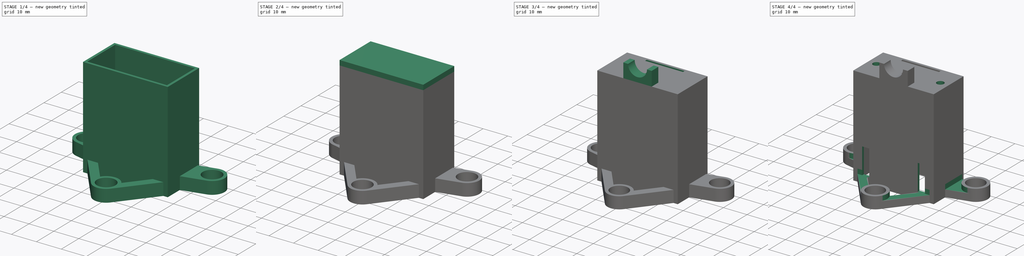
[diagram: build sequence overview — one tinted view per stage of 4, left to right]
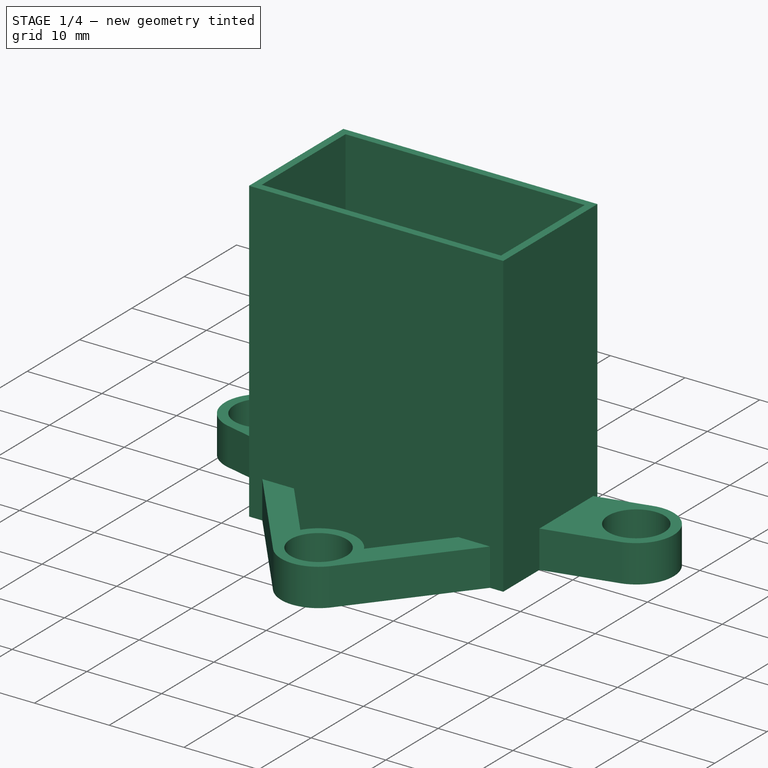
[diagram: stage 1 of 4 — iso view after this stage's code; geometry added in this stage tinted green]
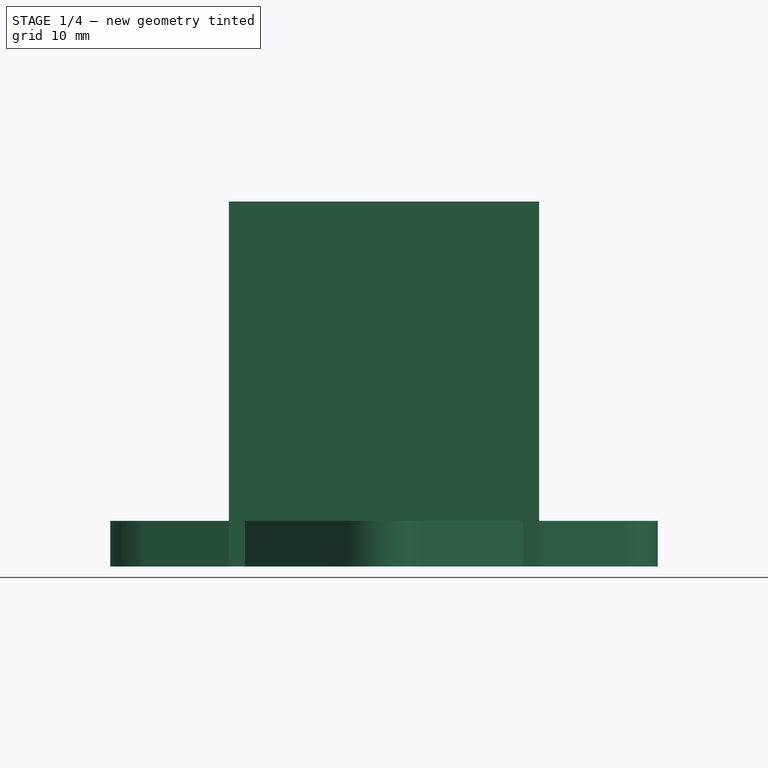
[diagram: stage 1 of 4 — front view after this stage's code; geometry added in this stage tinted green]
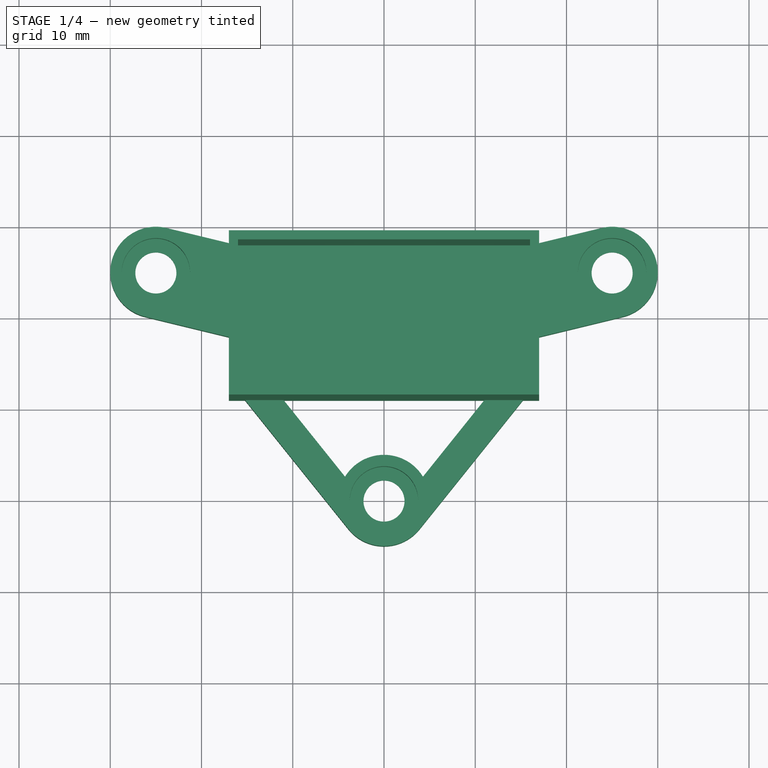
[diagram: stage 1 of 4 — top view after this stage's code; geometry added in this stage tinted green]
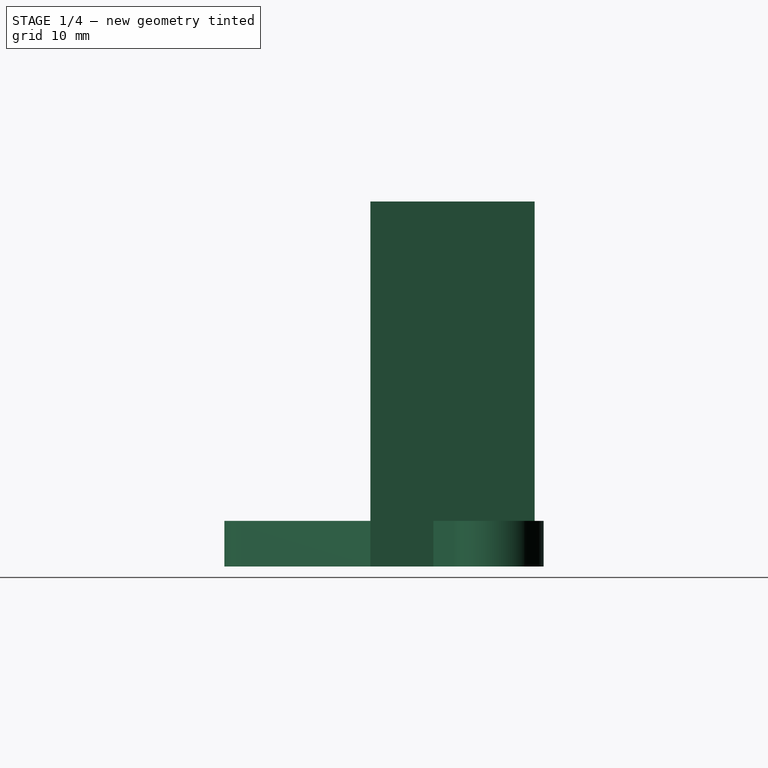
[diagram: stage 1 of 4 — right view after this stage's code; geometry added in this stage tinted green]
FCSTD DOCUMENT  (FreeCAD 1.0R38641 +678 (Git))
Label: box-part2
License: All rights reserved
LicenseURL: https://en.wikipedia.org/wiki/All_rights_reserved
objects: Sketcher::SketchObject×13, PartDesign::Pocket×7, PartDesign::Pad×5, PartDesign::Hole×1, PartDesign::Body×1
note: 66 computed .brp shape members not serialized (recipe doc carries the construction recipe); baked Part::Feature solids carry a one-line shape summary decoded from their .brp

FEATURE [Sketcher::SketchObject] Sketch282
  ArcFitTolerance = 0
  AttachmentSupport = -> [XY_Plane032]
  FullyConstrained = true
  MakeInternals = false
  MapMode = 5
  sketch-geometry (18):
    g0: LineSegment StartX=-16 StartY=7.96043 StartZ=0 EndX=16 EndY=7.96043 EndZ=0
    g1: LineSegment StartX=16 StartY=-2.33 StartZ=0 EndX=16 EndY=-8.03957 EndZ=0
    g2: LineSegment StartX=-16 StartY=-8.03957 StartZ=0 EndX=-16 EndY=-2.33 EndZ=0
    g3: ArcOfCircle CenterX=-25 CenterY=5 CenterZ=0 NormalX=0 NormalY=0 NormalZ=1 AngleXU=0 Radius=5 StartAngle=1.33265 EndAngle=4.47424
    g4: ArcOfCircle CenterX=25 CenterY=5 CenterZ=0 NormalX=0 NormalY=0 NormalZ=1 AngleXU=0 Radius=5 StartAngle=4.95054 EndAngle=8.09213
    g5: ArcOfCircle CenterX=0 CenterY=-20 CenterZ=0 NormalX=0 NormalY=0 NormalZ=1 AngleXU=0 Radius=5 StartAngle=0.547966 EndAngle=2.59363
    g6: LineSegment StartX=-16 StartY=7.96043 StartZ=0 EndX=-23.8205 EndY=9.85888 EndZ=0
    g7: LineSegment StartX=-16 StartY=-2.33 StartZ=0 EndX=-26.1795 EndY=0.141116 EndZ=0
    g8: LineSegment StartX=16 StartY=7.96043 StartZ=0 EndX=23.8205 EndY=9.85888 EndZ=0
    g9: LineSegment StartX=16 StartY=-2.33 StartZ=0 EndX=26.1795 EndY=0.141116 EndZ=0
    g10: LineSegment StartX=-16 StartY=-8.03957 StartZ=0 EndX=-3.90074 EndY=-23.128 EndZ=0
    g11: LineSegment StartX=16 StartY=-8.03957 StartZ=0 EndX=3.90074 EndY=-23.128 EndZ=0
    g12: LineSegment StartX=-11 StartY=-9 StartZ=0 EndX=11 EndY=-9 EndZ=0
    g13: LineSegment StartX=-11 StartY=-9 StartZ=0 EndX=-4.26793 EndY=-17.3952 EndZ=0
    g14: LineSegment StartX=11 StartY=-9 StartZ=0 EndX=4.26793 EndY=-17.3952 EndZ=0
    g15: ArcOfCircle CenterX=0 CenterY=-20 CenterZ=0 NormalX=0 NormalY=0 NormalZ=1 AngleXU=0 Radius=5 StartAngle=3.81749 EndAngle=5.60729
    g16: LineSegment [constr] StartX=-16 StartY=-8.03957 StartZ=0 EndX=16 EndY=-8.03957 EndZ=0
    g17: LineSegment [constr] StartX=-25 StartY=5 StartZ=0 EndX=25 EndY=5 EndZ=0
  constraints (50):
    c: Horizontal(g0)
    c: Vertical(g1)
    c: Vertical(g2)
    c: DistanceY(g1,g0) = 16
    c: DistanceX(g2,g1) = 32
    c: Distance(g-1,g1) = 16
    c: PointOnObject(g5,g-2)
    c: Diameter(g5) = 10
    c: Equal(g3,g4)
    c: Equal(g4,g5)
    c: Distance(g3,g4) = 50
    c: DistanceY(g-1,g3) = 5
    c: DistanceY(g-1,g4) = 5
    c: DistanceX(g-2,g3) = -25
    c: Coincident(g6,g0)
    c: Parallel(g6,g7)
    c: Tangent(g3,g7) = 1.5708
    c: Tangent(g3,g6) = -1.5708
    c: Coincident(g8,g0)
    c: Parallel(g8,g9)
    c: Tangent(g4,g8) = 1.5708
    c: Tangent(g4,g9) = -1.5708
    c: Coincident(g1,g9)
    c: Coincident(g2,g7)
    c: DistanceX(g0,g0) = 32
    c: DistanceX(g-2,g0) = 16
    c: Coincident(g11,g1)
    c: Coincident(g10,g2)
    c: DistanceY(g-1,g2) = -2.33
    c: Horizontal(g12)
    c: Coincident(g13,g12)
    c: Distance(g-1,g12) = 9
    c: Parallel(g13,g10)
    c: DistanceX(g-2,g12) = -11
    c: DistanceX(g12,g12) = 22
    c: Coincident(g14,g12)
    c: Parallel(g14,g11)
    c: Coincident(g15,g11) = 1.5708
    c: Coincident(g5,g14)
    c: Equal(g5,g15)
    c: Coincident(g5,g13)
    c: Tangent(g15,g10) = -1.5708
    c: Coincident(g5,g15)
    c: Tangent(g11,g15) = 1.5708
    c: Coincident(g16,g2)
    c: Horizontal(g16)
    c: Coincident(g16,g1)
    c: Coincident(g17,g3)
    c: Coincident(g17,g4)
    c: Distance(g5,g17) = 25
FEATURE [PartDesign::Pad] Pad134
  Direction = (0,0,1)
  Length = 5
  Length2 = 10
  Profile = -> Sketch282
  ReferenceAxis = -> Sketch282 [N_Axis]
  Suppressed = false
  Type = 0
FEATURE [Sketcher::SketchObject] Sketch284
  ArcFitTolerance = 0
  FullyConstrained = true
  MakeInternals = false
  MapMode = 5
  Placement = pos=(0,0,0) rot=(1,0,0;3.14159rad)
  sketch-geometry (8):
    g0: LineSegment StartX=-17 StartY=9 StartZ=0 EndX=17 EndY=9 EndZ=0
    g1: LineSegment StartX=17 StartY=9 StartZ=0 EndX=17 EndY=-9 EndZ=0
    g2: LineSegment StartX=17 StartY=-9 StartZ=0 EndX=-17 EndY=-9 EndZ=0
    g3: LineSegment StartX=-17 StartY=-9 StartZ=0 EndX=-17 EndY=9 EndZ=0
    g4: LineSegment StartX=-16 StartY=8 StartZ=0 EndX=16 EndY=8 EndZ=0
    g5: LineSegment StartX=16 StartY=8 StartZ=0 EndX=16 EndY=-8 EndZ=0
    g6: LineSegment StartX=16 StartY=-8 StartZ=0 EndX=-16 EndY=-8 EndZ=0
    g7: LineSegment StartX=-16 StartY=-8 StartZ=0 EndX=-16 EndY=8 EndZ=0
  constraints (24):
    c: Coincident(g0,g1)
    c: Coincident(g1,g2)
    c: Coincident(g2,g3)
    c: Coincident(g3,g0)
    c: Horizontal(g0)
    c: Horizontal(g2)
    c: Vertical(g1)
    c: Vertical(g3)
    c: DistanceX(g2,g2) = 34
    c: DistanceY(g3,g3) = 18
    c: Distance(g-1,g0) = 9
    c: Distance(g-1,g3) = 17
    c: Coincident(g4,g5)
    c: Coincident(g5,g6)
    c: Coincident(g6,g7)
    c: Coincident(g7,g4)
    c: Horizontal(g4)
    c: Horizontal(g6)
    c: Vertical(g5)
    c: Vertical(g7)
    c: Distance(g0,g4) = 1
    c: Distance(g1,g5) = 1
    c: DistanceX(g6,g6) = 32
    c: DistanceY(g5,g5) = 16
FEATURE [Sketcher::SketchObject] Sketch286
  ArcFitTolerance = 0
  FullyConstrained = true
  MakeInternals = false
  MapMode = 5
  Placement = pos=(0,0,5) rot=(0,0,1;0rad)
  sketch-geometry (3):
    g0: Circle CenterX=0 CenterY=-20 CenterZ=0 NormalX=0 NormalY=0 NormalZ=1 AngleXU=0 Radius=2.25
    g1: Circle CenterX=25 CenterY=5 CenterZ=0 NormalX=0 NormalY=0 NormalZ=1 AngleXU=0 Radius=2.25
    g2: Circle CenterX=-25 CenterY=5 CenterZ=0 NormalX=0 NormalY=0 NormalZ=1 AngleXU=0 Radius=2.25
  constraints (9):
    c: Distance(g2,g-2) = 25
    c: Distance(g1,g-2) = 25
    c: Distance(g2,g-1) = 5
    c: Distance(g1,g-1) = 5
    c: Distance(g0,g-1) = 20
    c: PointOnObject(g0,g-2)
    c: Diameter(g2) = 4.5
    c: Equal(g2,g1)
    c: Equal(g2,g0)
FEATURE [PartDesign::Hole] Hole012
  BaseFeature = -> Pad134
  CustomThreadClearance = 0
  Depth = 25
  DepthType = 0
  Diameter = 4.5
  DrillForDepth = false
  DrillPoint = 1
  DrillPointAngle = 118
  HoleCutCountersinkAngle = 90
  HoleCutCustomValues = false
  HoleCutDepth = 4
  HoleCutDiameter = 7.5
  HoleCutType = 1
  ModelThread = false
  Profile = -> Sketch286
  Suppressed = false
  Tapered = false
  TaperedAngle = 90
  ThreadClass = 0
  ThreadDepth = 25
  ThreadDepthType = 0
  ThreadDirection = 0
  ThreadFit = 0
  ThreadSize = 0
  ThreadType = 0
  Threaded = false
  UseCustomThreadClearance = false
FEATURE [PartDesign::Pad] Pad136
  BaseFeature = -> Hole012
  Direction = (0,-1e-16,-1)
  Length = 40
  Length2 = 10
  Profile = -> Sketch284
  ReferenceAxis = -> Sketch284 [N_Axis]
  Reversed = true
  Suppressed = false
  Type = 0
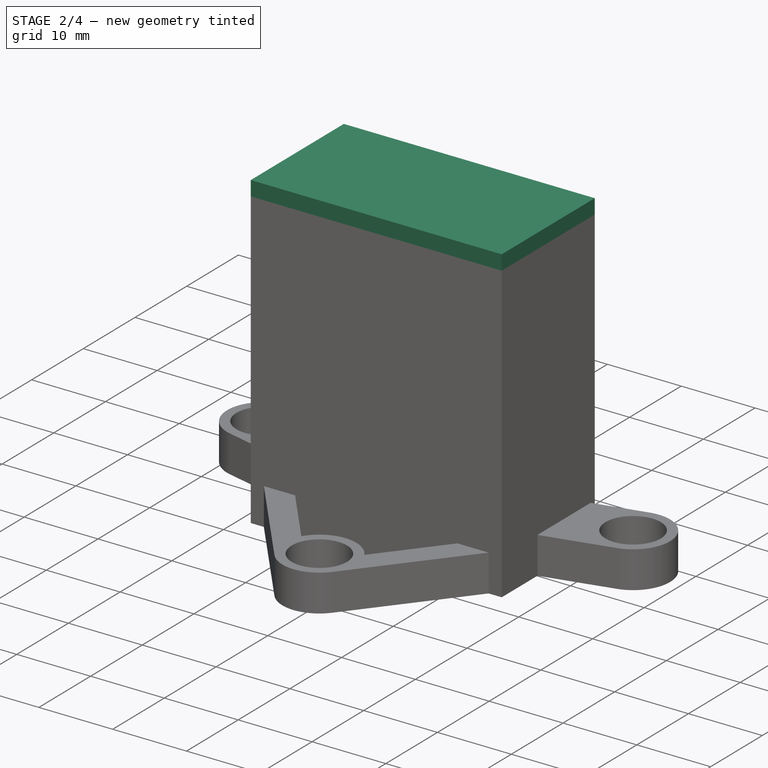
[diagram: stage 2 of 4 — iso view after this stage's code; geometry added in this stage tinted green]
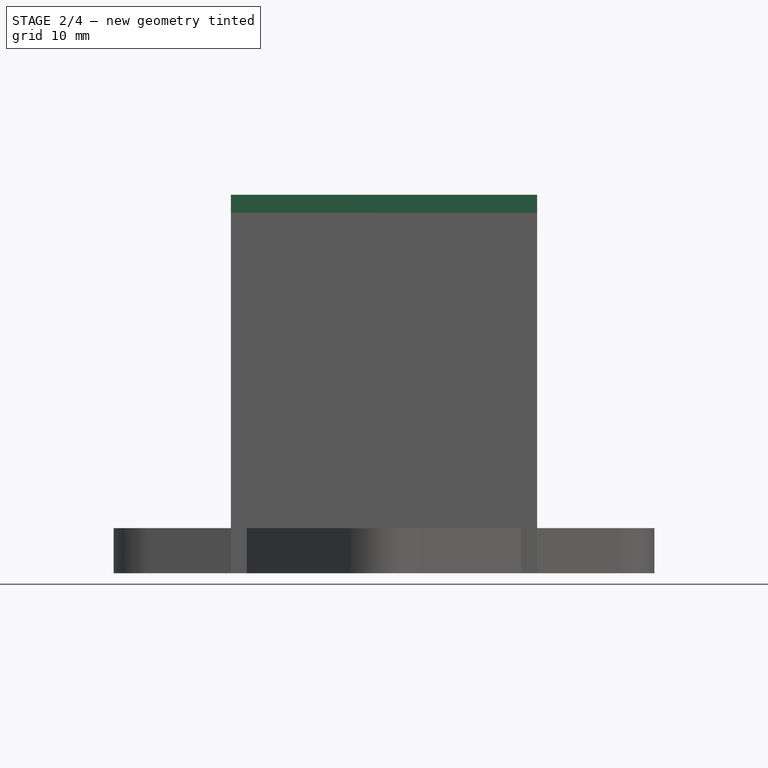
[diagram: stage 2 of 4 — front view after this stage's code; geometry added in this stage tinted green]
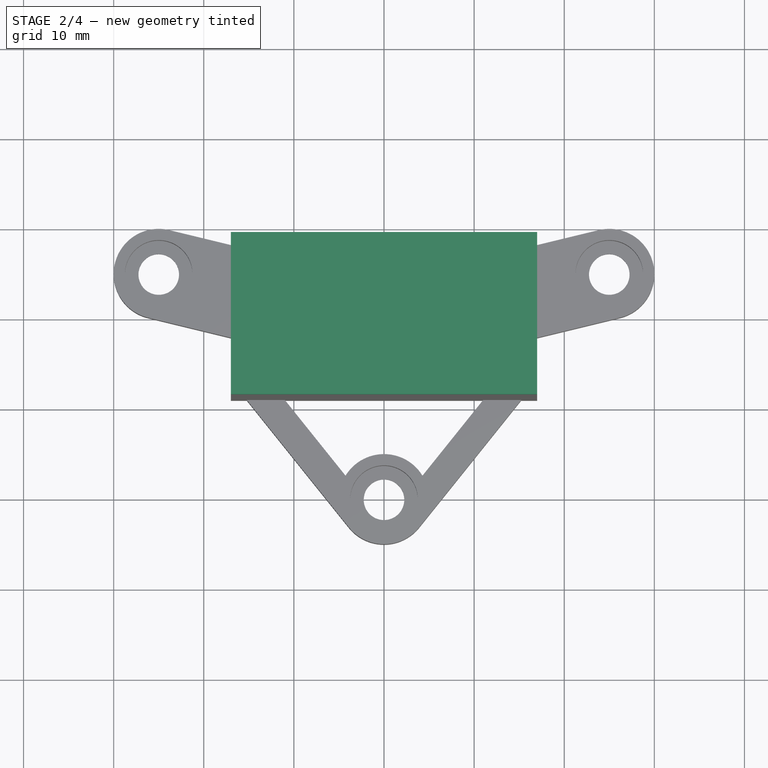
[diagram: stage 2 of 4 — top view after this stage's code; geometry added in this stage tinted green]
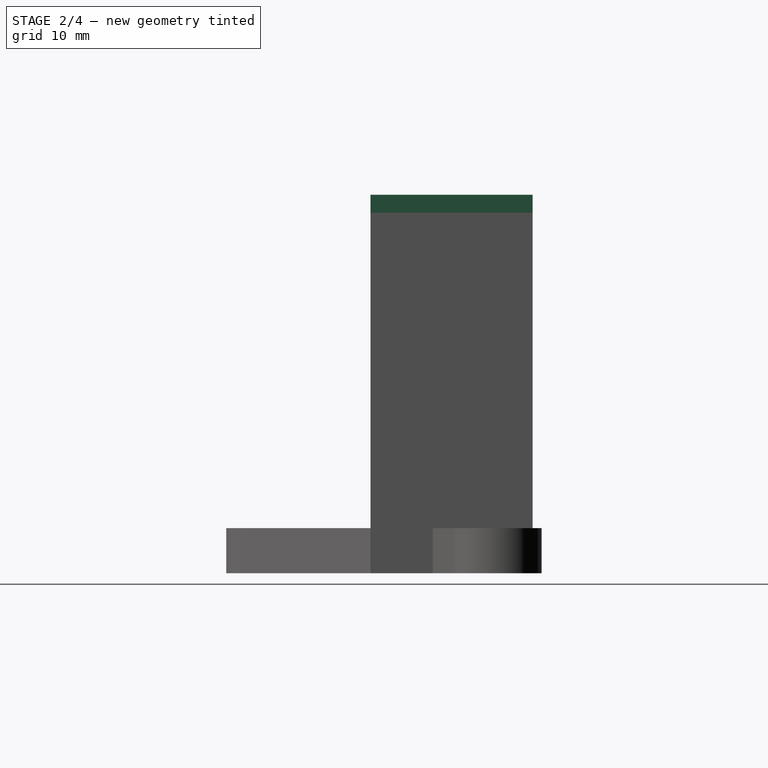
[diagram: stage 2 of 4 — right view after this stage's code; geometry added in this stage tinted green]
FEATURE [Sketcher::SketchObject] Sketch287
  ArcFitTolerance = 0
  FullyConstrained = true
  MakeInternals = false
  MapMode = 5
  Placement = pos=(0,-8,0) rot=(1,0,0;1.5708rad)
  sketch-geometry (8):
    g0: LineSegment StartX=-13.25 StartY=3 StartZ=0 EndX=-10.25 EndY=3 EndZ=0
    g1: LineSegment StartX=-13.25 StartY=3 StartZ=0 EndX=-13.25 EndY=14 EndZ=0
    g2: LineSegment StartX=-10.25 StartY=3 StartZ=0 EndX=-10.25 EndY=14 EndZ=0
    g3: LineSegment StartX=-13.25 StartY=14 StartZ=0 EndX=-10.25 EndY=14 EndZ=0
    g4: LineSegment StartX=10.25 StartY=3 StartZ=0 EndX=13.25 EndY=3 EndZ=0
    g5: LineSegment StartX=10.25 StartY=3 StartZ=0 EndX=10.25 EndY=14 EndZ=0
    g6: LineSegment StartX=13.25 StartY=3 StartZ=0 EndX=13.25 EndY=14 EndZ=0
    g7: LineSegment StartX=10.25 StartY=14 StartZ=0 EndX=13.25 EndY=14 EndZ=0
  constraints (24):
    c: Horizontal(g0)
    c: DistanceX(g0,g0) = 3
    c: DistanceX(g-2,g0) = -10.25
    c: Distance(g-1,g0) = 3
    c: Coincident(g1,g0)
    c: Vertical(g1)
    c: Coincident(g2,g0)
    c: Vertical(g2)
    c: Coincident(g3,g1)
    c: Coincident(g3,g2)
    c: Horizontal(g3)
    c: DistanceY(g1,g1) = 11
    c: Horizontal(g4)
    c: DistanceX(g4,g4) = 3
    c: Coincident(g5,g4)
    c: Vertical(g5)
    c: Coincident(g6,g4)
    c: Vertical(g6)
    c: Coincident(g7,g5)
    c: Coincident(g7,g6)
    c: Horizontal(g7)
    c: Distance(g-1,g4) = 3
    c: DistanceY(g6,g6) = 11
    c: DistanceX(g-2,g4) = 10.25
FEATURE [Sketcher::SketchObject] Sketch288
  ArcFitTolerance = 0
  FullyConstrained = true
  MakeInternals = false
  MapMode = 5
  Placement = pos=(0,0,0) rot=(1,0,0;3.14159rad)
  sketch-geometry (4):
    g0: LineSegment StartX=-16 StartY=8 StartZ=0 EndX=16 EndY=8 EndZ=0
    g1: LineSegment StartX=16 StartY=8 StartZ=0 EndX=16 EndY=-8 EndZ=0
    g2: LineSegment StartX=16 StartY=-8 StartZ=0 EndX=-16 EndY=-8 EndZ=0
    g3: LineSegment StartX=-16 StartY=-8 StartZ=0 EndX=-16 EndY=8 EndZ=0
  constraints (12):
    c: Coincident(g0,g1)
    c: Coincident(g1,g2)
    c: Coincident(g2,g3)
    c: Coincident(g3,g0)
    c: Horizontal(g0)
    c: Horizontal(g2)
    c: Vertical(g1)
    c: Vertical(g3)
    c: DistanceX(g2,g2) = 32
    c: DistanceY(g1,g1) = 16
    c: Distance(g-1,g3) = 16
    c: Distance(g-1,g0) = 8
FEATURE [PartDesign::Pocket] Pocket119
  BaseFeature = -> Pad136
  Direction = (0,1e-16,1)
  Length = 5
  Length2 = 5
  Profile = -> Sketch288
  ReferenceAxis = -> Sketch288 [N_Axis]
  Suppressed = false
  Type = 0
FEATURE [Sketcher::SketchObject] Sketch289
  ArcFitTolerance = 0
  AttachmentSupport = -> [Pocket119]
  FullyConstrained = true
  MakeInternals = false
  MapMode = 5
  Placement = pos=(0,0,40) rot=(0,0,1;0rad)
  sketch-geometry (4):
    g0: LineSegment StartX=-17 StartY=9 StartZ=0 EndX=17 EndY=9 EndZ=0
    g1: LineSegment StartX=17 StartY=9 StartZ=0 EndX=17 EndY=-9 EndZ=0
    g2: LineSegment StartX=17 StartY=-9 StartZ=0 EndX=-17 EndY=-9 EndZ=0
    g3: LineSegment StartX=-17 StartY=-9 StartZ=0 EndX=-17 EndY=9 EndZ=0
  constraints (12):
    c: Coincident(g0,g1)
    c: Coincident(g1,g2)
    c: Coincident(g2,g3)
    c: Coincident(g3,g0)
    c: Horizontal(g0)
    c: Horizontal(g2)
    c: Vertical(g1)
    c: Vertical(g3)
    c: DistanceX(g2,g2) = 34
    c: DistanceY(g1,g1) = 18
    c: Distance(g-1,g3) = 17
    c: Distance(g-1,g0) = 9
FEATURE [PartDesign::Pad] Pad137
  BaseFeature = -> Pocket119
  Direction = (0,0,1)
  Length = 2
  Length2 = 10
  Profile = -> Sketch289
  ReferenceAxis = -> Sketch289 [N_Axis]
  Suppressed = false
  Type = 0
FEATURE [Sketcher::SketchObject] Sketch290
  ArcFitTolerance = 0
  AttachmentSupport = -> [Pad137]
  FullyConstrained = true
  MakeInternals = false
  MapMode = 5
  Placement = pos=(0,0,40) rot=(1,0,0;3.14159rad)
  sketch-geometry (4):
    g0: LineSegment StartX=-15 StartY=-2 StartZ=0 EndX=15 EndY=-2 EndZ=0
    g1: LineSegment StartX=15 StartY=-2 StartZ=0 EndX=15 EndY=-5 EndZ=0
    g2: LineSegment StartX=15 StartY=-5 StartZ=0 EndX=-15 EndY=-5 EndZ=0
    g3: LineSegment StartX=-15 StartY=-5 StartZ=0 EndX=-15 EndY=-2 EndZ=0
  constraints (12):
    c: Coincident(g0,g1)
    c: Coincident(g1,g2)
    c: Coincident(g2,g3)
    c: Coincident(g3,g0)
    c: Horizontal(g0)
    c: Horizontal(g2)
    c: Vertical(g1)
    c: Vertical(g3)
    c: DistanceY(g3,g3) = 3
    c: DistanceX(g2,g2) = 30
    c: Distance(g-1,g3) = 15
    c: Distance(g-1,g0) = 2
FEATURE [PartDesign::Pocket] Pocket120
  BaseFeature = -> Pad137
  Direction = (0,0,1)
  Length = 1
  Length2 = 5
  Profile = -> Sketch290
  ReferenceAxis = -> Sketch290 [N_Axis]
  Suppressed = false
  Type = 0
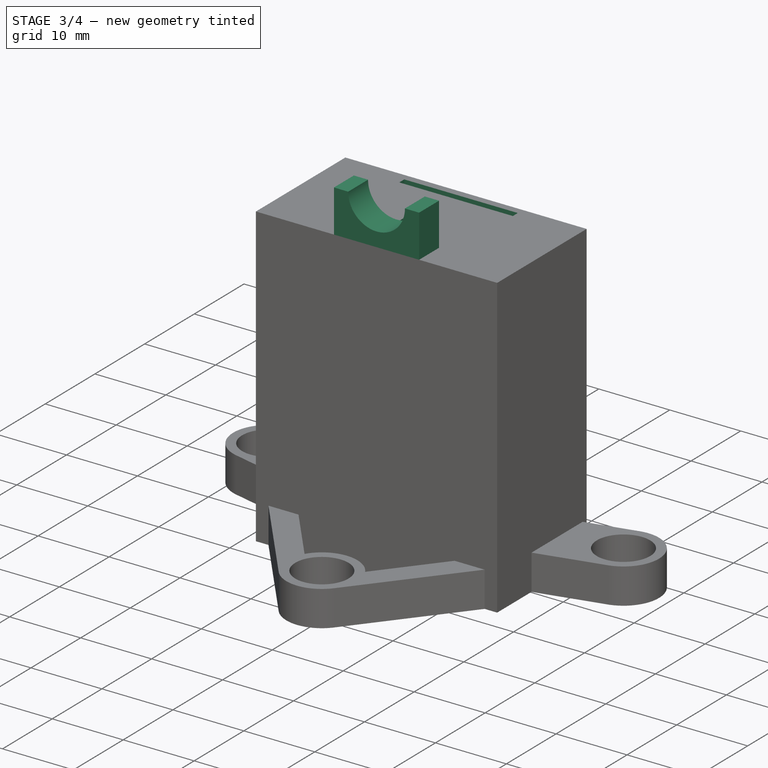
[diagram: stage 3 of 4 — iso view after this stage's code; geometry added in this stage tinted green]
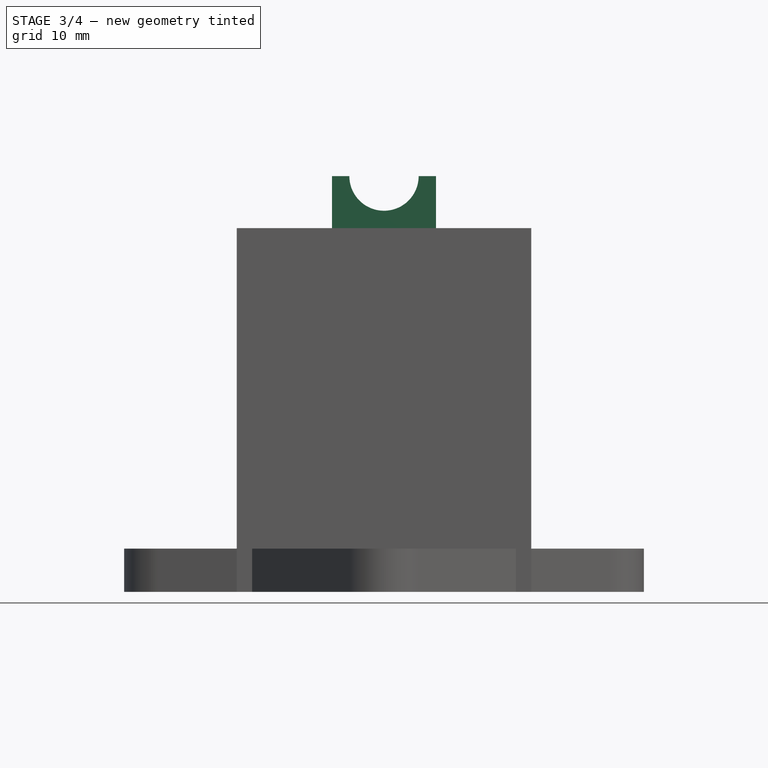
[diagram: stage 3 of 4 — front view after this stage's code; geometry added in this stage tinted green]
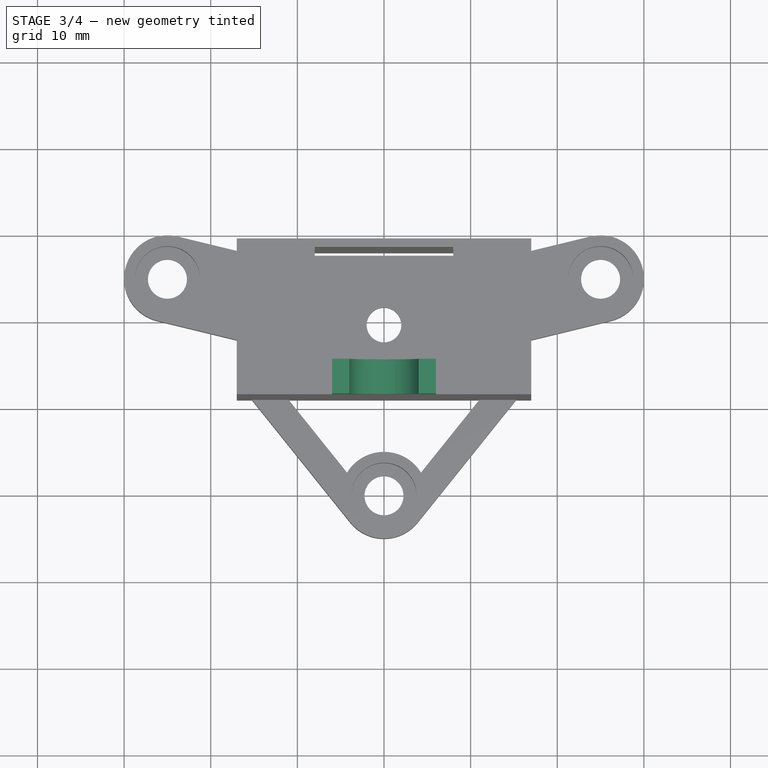
[diagram: stage 3 of 4 — top view after this stage's code; geometry added in this stage tinted green]
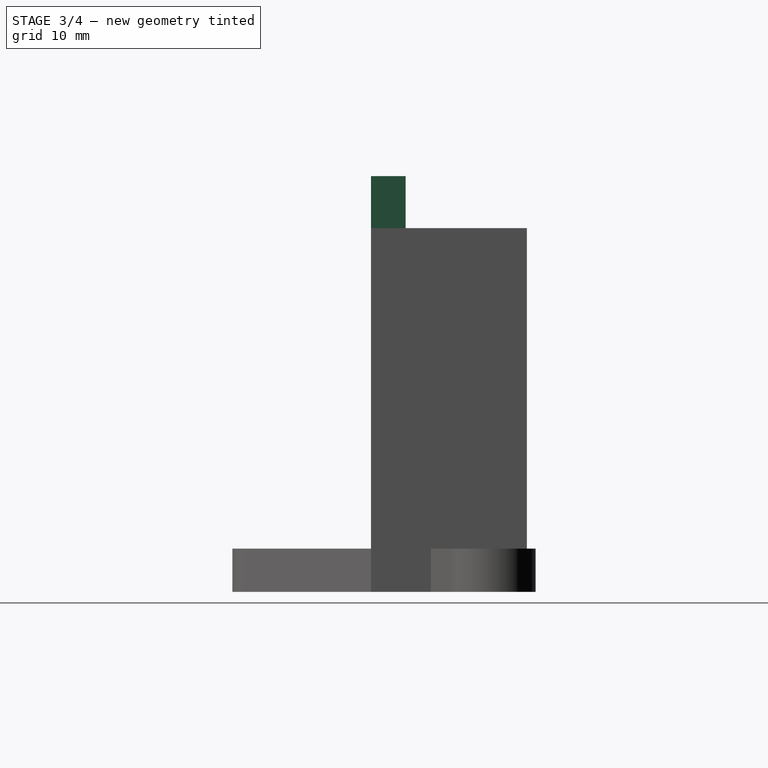
[diagram: stage 3 of 4 — right view after this stage's code; geometry added in this stage tinted green]
FEATURE [Sketcher::SketchObject] Sketch291
  ArcFitTolerance = 0
  AttachmentSupport = -> [Pocket120]
  FullyConstrained = true
  MakeInternals = false
  MapMode = 5
  Placement = pos=(0,0,42) rot=(0,0,1;0rad)
  sketch-geometry (5):
    g0: LineSegment StartX=-8 StartY=8 StartZ=0 EndX=8 EndY=8 EndZ=0
    g1: LineSegment StartX=8 StartY=8 StartZ=0 EndX=8 EndY=7 EndZ=0
    g2: LineSegment StartX=8 StartY=7 StartZ=0 EndX=-8 EndY=7 EndZ=0
    g3: LineSegment StartX=-8 StartY=7 StartZ=0 EndX=-8 EndY=8 EndZ=0
    g4: Circle CenterX=0 CenterY=-1 CenterZ=0 NormalX=0 NormalY=0 NormalZ=1 AngleXU=0 Radius=2
  constraints (15):
    c: Coincident(g0,g1)
    c: Coincident(g1,g2)
    c: Coincident(g2,g3)
    c: Coincident(g3,g0)
    c: Horizontal(g0)
    c: Horizontal(g2)
    c: Vertical(g1)
    c: Vertical(g3)
    c: Distance(g-1,g1) = 8
    c: Distance(g-1,g2) = 7
    c: DistanceX(g0,g0) = 16
    c: DistanceY(g1,g1) = 1
    c: Diameter(g4) = 4
    c: DistanceY(g-1,g4) = -1
    c: PointOnObject(g4,g-2)
FEATURE [PartDesign::Pocket] Pocket121
  BaseFeature = -> Pocket120
  Direction = (0,0,-1)
  Length = 5
  Length2 = 5
  Profile = -> Sketch291
  ReferenceAxis = -> Sketch291 [N_Axis]
  Suppressed = false
  Type = 0
FEATURE [Sketcher::SketchObject] Sketch292
  ArcFitTolerance = 0
  AttachmentSupport = -> [Pocket121]
  FullyConstrained = true
  MakeInternals = false
  MapMode = 5
  Placement = pos=(0,0,42) rot=(0,0,1;0rad)
  sketch-geometry (4):
    g0: LineSegment StartX=-6 StartY=-5 StartZ=0 EndX=6 EndY=-5 EndZ=0
    g1: LineSegment StartX=6 StartY=-5 StartZ=0 EndX=6 EndY=-9 EndZ=0
    g2: LineSegment StartX=6 StartY=-9 StartZ=0 EndX=-6 EndY=-9 EndZ=0
    g3: LineSegment StartX=-6 StartY=-9 StartZ=0 EndX=-6 EndY=-5 EndZ=0
  constraints (12):
    c: Coincident(g0,g1)
    c: Coincident(g1,g2)
    c: Coincident(g2,g3)
    c: Coincident(g3,g0)
    c: Horizontal(g0)
    c: Horizontal(g2)
    c: Vertical(g1)
    c: Vertical(g3)
    c: DistanceX(g2,g2) = 12
    c: Distance(g-1,g3) = 6
    c: DistanceY(g1,g1) = 4
    c: Distance(g-1,g0) = 5
FEATURE [PartDesign::Pad] Pad138
  BaseFeature = -> Pocket121
  Direction = (0,0,1)
  Length = 6
  Length2 = 10
  Profile = -> Sketch292
  ReferenceAxis = -> Sketch292 [N_Axis]
  Suppressed = false
  Type = 0
FEATURE [Sketcher::SketchObject] Sketch293
  ArcFitTolerance = 0
  AttachmentSupport = -> [Pad138]
  FullyConstrained = true
  MakeInternals = false
  MapMode = 5
  Placement = pos=(0,-9,0) rot=(1,0,0;1.5708rad)
  sketch-geometry (1):
    g0: Circle CenterX=0 CenterY=48 CenterZ=0 NormalX=0 NormalY=0 NormalZ=1 AngleXU=0 Radius=4
  constraints (3):
    c: PointOnObject(g0,g-2)
    c: Diameter(g0) = 8
    c: DistanceY(g-1,g0) = 48
FEATURE [PartDesign::Pocket] Pocket122
  BaseFeature = -> Pad138
  Direction = (0,1,-2e-16)
  Length = 5
  Length2 = 5
  Profile = -> Sketch293
  ReferenceAxis = -> Sketch293 [N_Axis]
  Suppressed = false
  Type = 0
FEATURE [Sketcher::SketchObject] Sketch294
  ArcFitTolerance = 0
  AttachmentSupport = -> [Pocket122]
  FullyConstrained = true
  MakeInternals = false
  MapMode = 5
  Placement = pos=(0,0,42) rot=(0,0,1;0rad)
  sketch-geometry (2):
    g0: Circle CenterX=-13.5 CenterY=0 CenterZ=0 NormalX=0 NormalY=0 NormalZ=1 AngleXU=0 Radius=2
    g1: Circle CenterX=13.5 CenterY=0 CenterZ=0 NormalX=0 NormalY=0 NormalZ=1 AngleXU=0 Radius=2
  constraints (6):
    c: PointOnObject(g0,g-1)
    c: PointOnObject(g1,g-1)
    c: Diameter(g0) = 4
    c: Equal(g0,g1)
    c: DistanceX(g-2,g0) = -13.5
    c: DistanceX(g-2,g1) = 13.5
FEATURE [PartDesign::Pad] Pad139
  BaseFeature = -> Pocket122
  Direction = (0,0,1)
  Length = 3
  Length2 = 10
  Profile = -> Sketch294
  ReferenceAxis = -> Sketch294 [N_Axis]
  Reversed = true
  Suppressed = false
  Type = 0
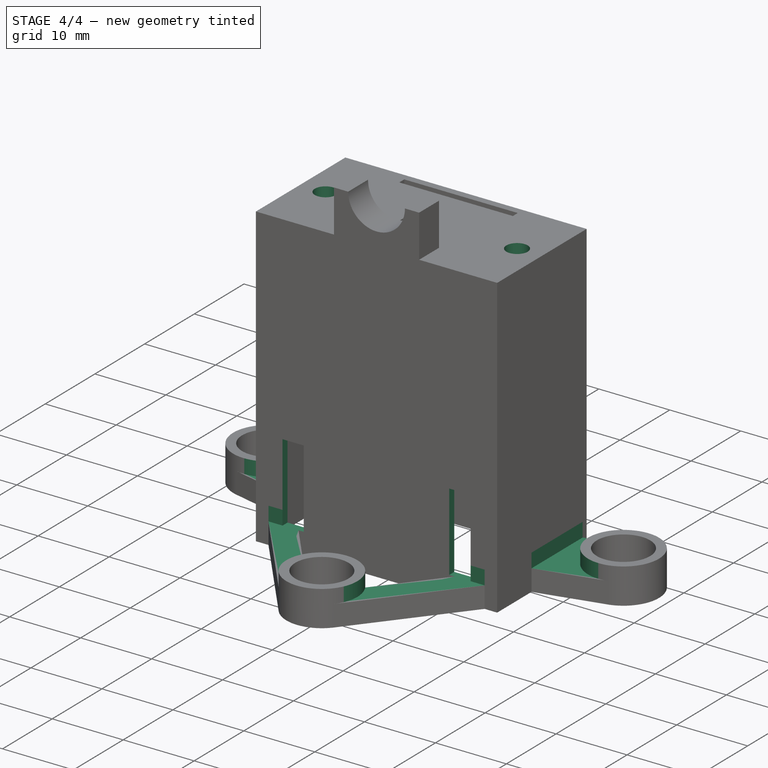
[diagram: stage 4 of 4 — iso view after this stage's code; geometry added in this stage tinted green]
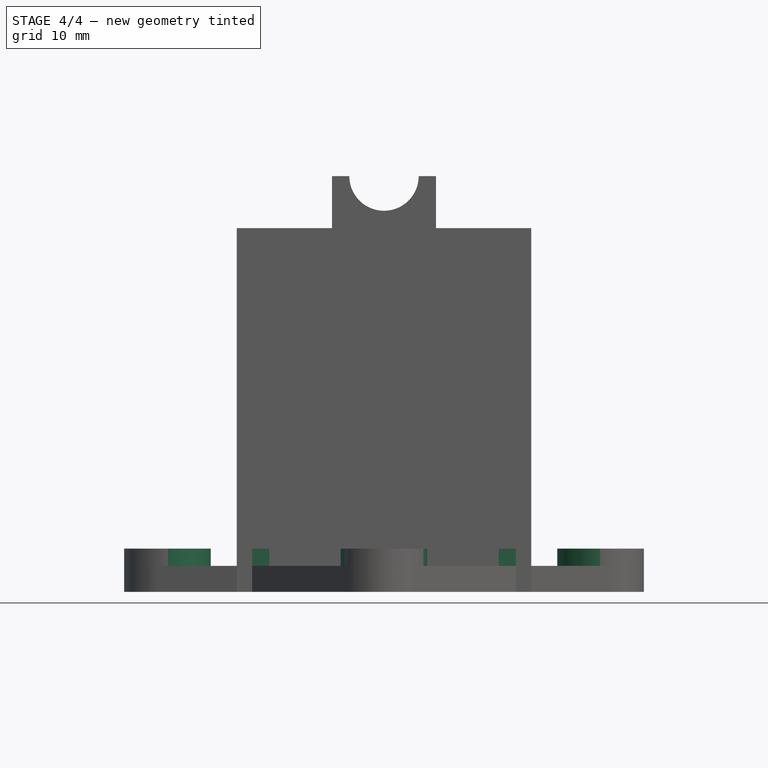
[diagram: stage 4 of 4 — front view after this stage's code; geometry added in this stage tinted green]
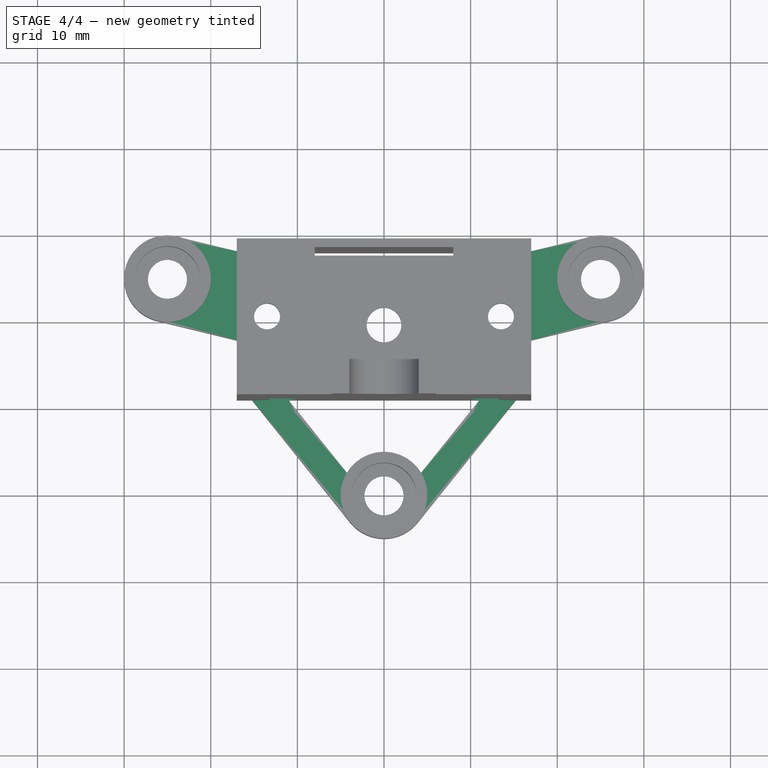
[diagram: stage 4 of 4 — top view after this stage's code; geometry added in this stage tinted green]
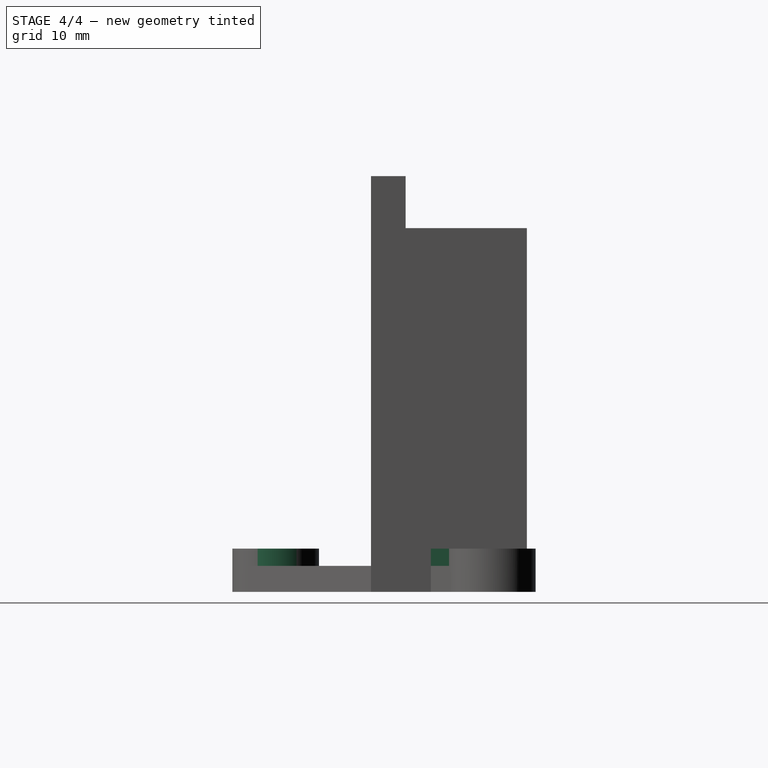
[diagram: stage 4 of 4 — right view after this stage's code; geometry added in this stage tinted green]
FEATURE [PartDesign::Pocket] Pocket123
  BaseFeature = -> Pad139
  Direction = (0,1,-2e-16)
  Length = 5
  Length2 = 5
  Midplane = true
  Profile = -> Sketch287
  ReferenceAxis = -> Sketch287 [N_Axis]
  Suppressed = false
  Type = 0
FEATURE [Sketcher::SketchObject] Sketch295
  ArcFitTolerance = 0
  AttachmentSupport = -> [Pocket123]
  FullyConstrained = true
  MakeInternals = false
  MapMode = 5
  Placement = pos=(0,0,5) rot=(0,0,1;0rad)
  sketch-geometry (16):
    g0: ArcOfCircle CenterX=0 CenterY=-20 CenterZ=0 NormalX=0 NormalY=0 NormalZ=1 AngleXU=0 Radius=5 StartAngle=2.36742 EndAngle=3.84965
    g1: LineSegment StartX=10 StartY=-9 StartZ=0 EndX=16 EndY=-9 EndZ=0
    g2: LineSegment StartX=10 StartY=-9 StartZ=0 EndX=3.57501 EndY=-16.5044 EndZ=0
    g3: LineSegment StartX=16 StartY=-9 StartZ=0 EndX=3.79812 EndY=-23.2518 EndZ=0
    g4: LineSegment StartX=-16 StartY=-9 StartZ=0 EndX=-10 EndY=-9 EndZ=0
    g5: LineSegment StartX=-16 StartY=-9 StartZ=0 EndX=-3.79812 EndY=-23.2518 EndZ=0
    g6: LineSegment StartX=-10 StartY=-9 StartZ=0 EndX=-3.57501 EndY=-16.5044 EndZ=0
    g7: ArcOfCircle CenterX=0 CenterY=-20 CenterZ=0 NormalX=0 NormalY=0 NormalZ=1 AngleXU=0 Radius=5 StartAngle=5.57512 EndAngle=7.05735
    g8: ArcOfCircle CenterX=25 CenterY=5 CenterZ=0 NormalX=0 NormalY=0 NormalZ=1 AngleXU=0 Radius=5 StartAngle=1.70035 EndAngle=5.04003
    g9: ArcOfCircle CenterX=-25 CenterY=5 CenterZ=0 NormalX=0 NormalY=0 NormalZ=1 AngleXU=0 Radius=5 StartAngle=4.38475 EndAngle=7.72443
    g10: LineSegment StartX=17 StartY=-3 StartZ=0 EndX=17 EndY=9 EndZ=0
    g11: LineSegment StartX=-17 StartY=-3 StartZ=0 EndX=-17 EndY=9 EndZ=0
    g12: LineSegment StartX=17 StartY=9 StartZ=0 EndX=24.354 EndY=9.9581 EndZ=0
    g13: LineSegment StartX=17 StartY=-3 StartZ=0 EndX=26.609 EndY=0.265971 EndZ=0
    g14: LineSegment StartX=-17 StartY=9 StartZ=0 EndX=-24.354 EndY=9.9581 EndZ=0
    g15: LineSegment StartX=-17 StartY=-3 StartZ=0 EndX=-26.609 EndY=0.265971 EndZ=0
  constraints (45):
    c: PointOnObject(g0,g-2)
    c: Horizontal(g1)
    c: Coincident(g2,g1)
    c: Coincident(g3,g1)
    c: DistanceY(g-1,g0) = -20
    c: Diameter(g0) = 10
    c: DistanceX(g1,g1) = 6
    c: Distance(g-1,g1) = 9
    c: DistanceX(g-2,g1) = 10
    c: Parallel(g2,g3)
    c: Horizontal(g4)
    c: DistanceX(g4,g4) = 6
    c: DistanceX(g-2,g4) = -10
    c: Distance(g-1,g4) = 9
    c: Coincident(g5,g4)
    c: Coincident(g6,g4)
    c: Parallel(g6,g5)
    c: Coincident(g7,g2)
    c: Coincident(g0,g6)
    c: Equal(g0,g7)
    c: Tangent(g0,g5) = -1.5708
    c: Tangent(g7,g3) = 1.5708
    c: Coincident(g0,g7)
    c: Vertical(g10)
    c: Vertical(g11)
    c: DistanceY(g10,g10) = 12
    c: Distance(g-1,g10) = 17
    c: DistanceY(g-1,g10) = -3
    c: Equal(g9,g8)
    c: Equal(g8,g7)
    c: DistanceX(g-2,g9) = -25
    c: DistanceY(g-1,g9) = 5
    c: DistanceX(g-2,g8) = 25
    c: DistanceY(g-1,g8) = 5
    c: DistanceY(g11,g11) = 12
    c: Distance(g-1,g11) = 17
    c: DistanceY(g-1,g11) = -3
    c: Coincident(g12,g10)
    c: Coincident(g13,g10)
    c: Coincident(g14,g11)
    c: Coincident(g15,g11)
    c: Tangent(g8,g13) = -1.5708
    c: Tangent(g8,g12) = 1.5708
    c: Tangent(g9,g14) = -1.5708
    c: Tangent(g9,g15) = 1.5708
FEATURE [PartDesign::Pocket] Pocket124
  BaseFeature = -> Pocket123
  Direction = (0,0,-1)
  Length = 2
  Length2 = 5
  Profile = -> Sketch295
  ReferenceAxis = -> Sketch295 [N_Axis]
  Suppressed = false
  Type = 0
FEATURE [Sketcher::SketchObject] Sketch296
  ArcFitTolerance = 0
  AttachmentSupport = -> [Pocket124]
  FullyConstrained = true
  MakeInternals = false
  MapMode = 5
  Placement = pos=(0,0,42) rot=(0,0,1;0rad)
  sketch-geometry (2):
    g0: Circle CenterX=13.5 CenterY=0 CenterZ=0 NormalX=0 NormalY=0 NormalZ=1 AngleXU=0 Radius=1.5
    g1: Circle CenterX=-13.5 CenterY=0 CenterZ=0 NormalX=0 NormalY=0 NormalZ=1 AngleXU=0 Radius=1.5
  constraints (6):
    c: PointOnObject(g0,g-1)
    c: PointOnObject(g1,g-1)
    c: DistanceX(g-2,g0) = 13.5
    c: DistanceX(g-2,g1) = -13.5
    c: Diameter(g1) = 3
    c: Equal(g1,g0)
FEATURE [PartDesign::Pocket] Pocket125
  BaseFeature = -> Pocket124
  Direction = (0,0,-1)
  Length = 10
  Length2 = 5
  Profile = -> Sketch296
  ReferenceAxis = -> Sketch296 [N_Axis]
  Suppressed = false
  Type = 0
FEATURE [PartDesign::Body] Body031  label="box-part2"
  AllowCompound = false
  Group = -> [Sketch282,Pad134,Sketch284,Sketch286,Sketch287,Hole012,Pad136,Sketch288,Pocket119,Sketch289,Pad137,Sketch290,Pocket120,Sketch291,Pocket121,Sketch292,Pad138,Sketch293,Pocket122,Sketch294,Pad139,Pocket123,Sketch295,Pocket124,Sketch296,Pocket125]
  Origin = -> Origin031
  Tip = -> Pocket125
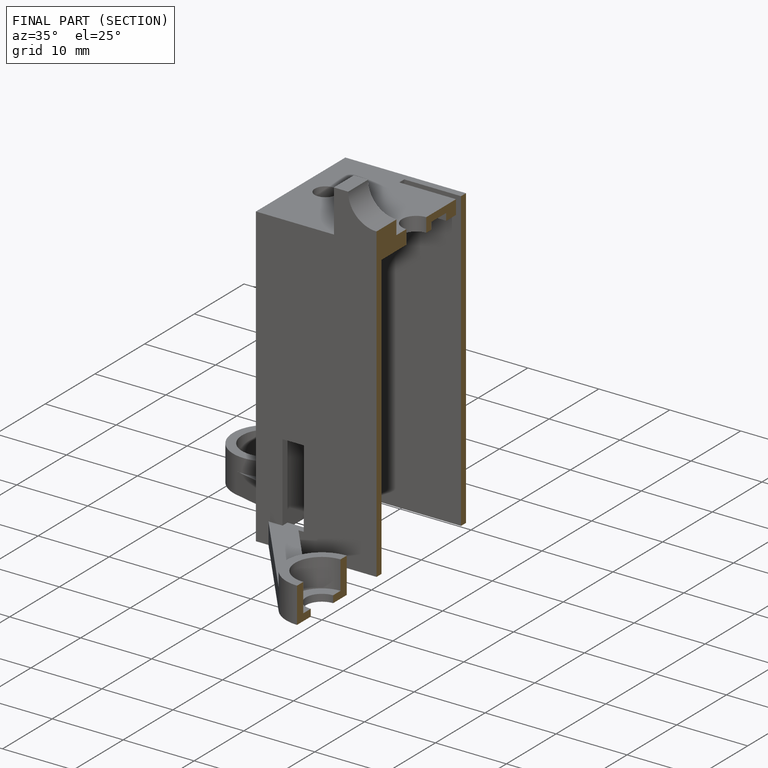
[diagram: finished part — half-section view (interior)]
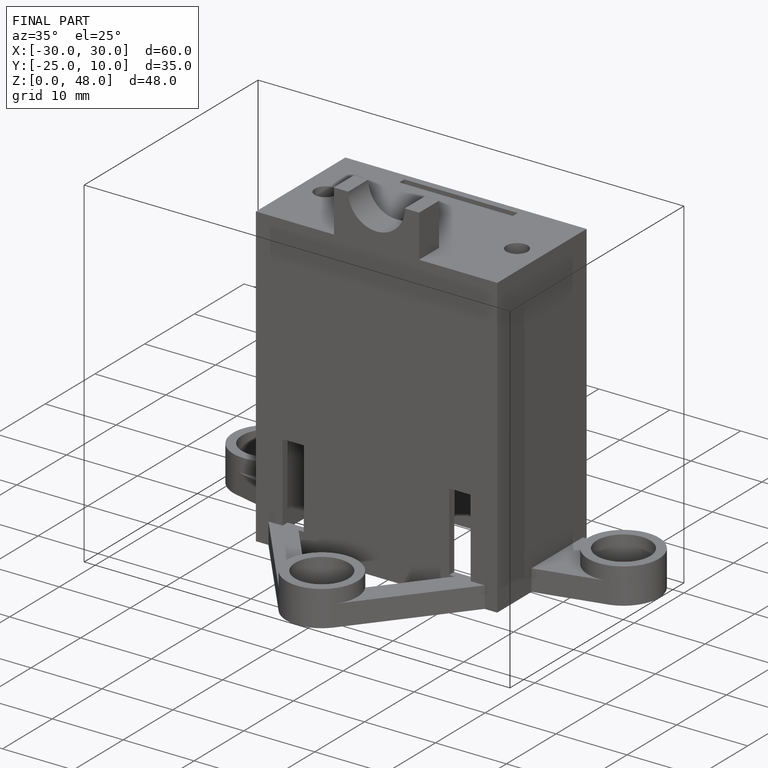
[diagram: finished part — iso view with bounding-box wireframe]
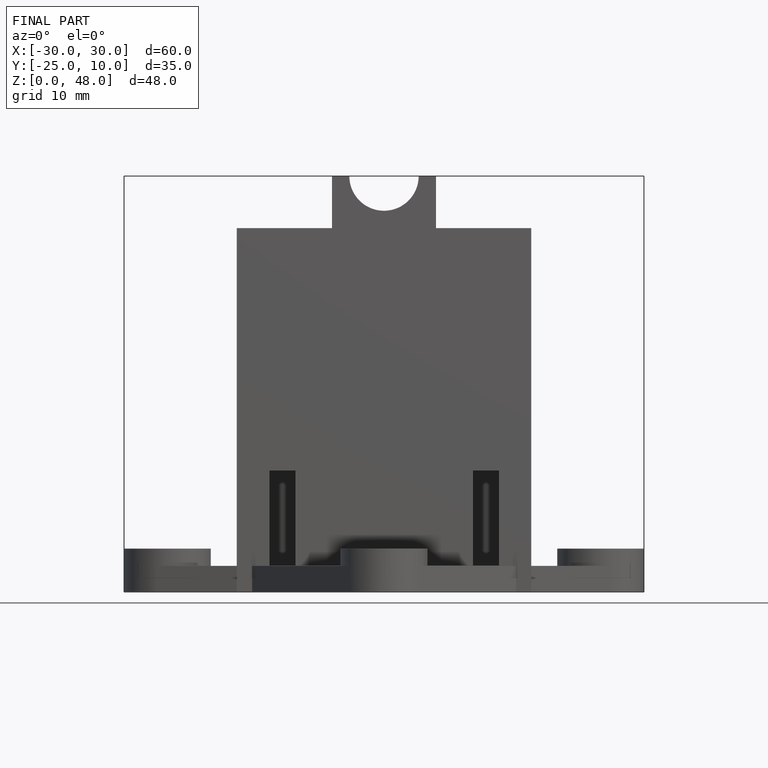
[diagram: finished part — front view with bounding-box wireframe]
